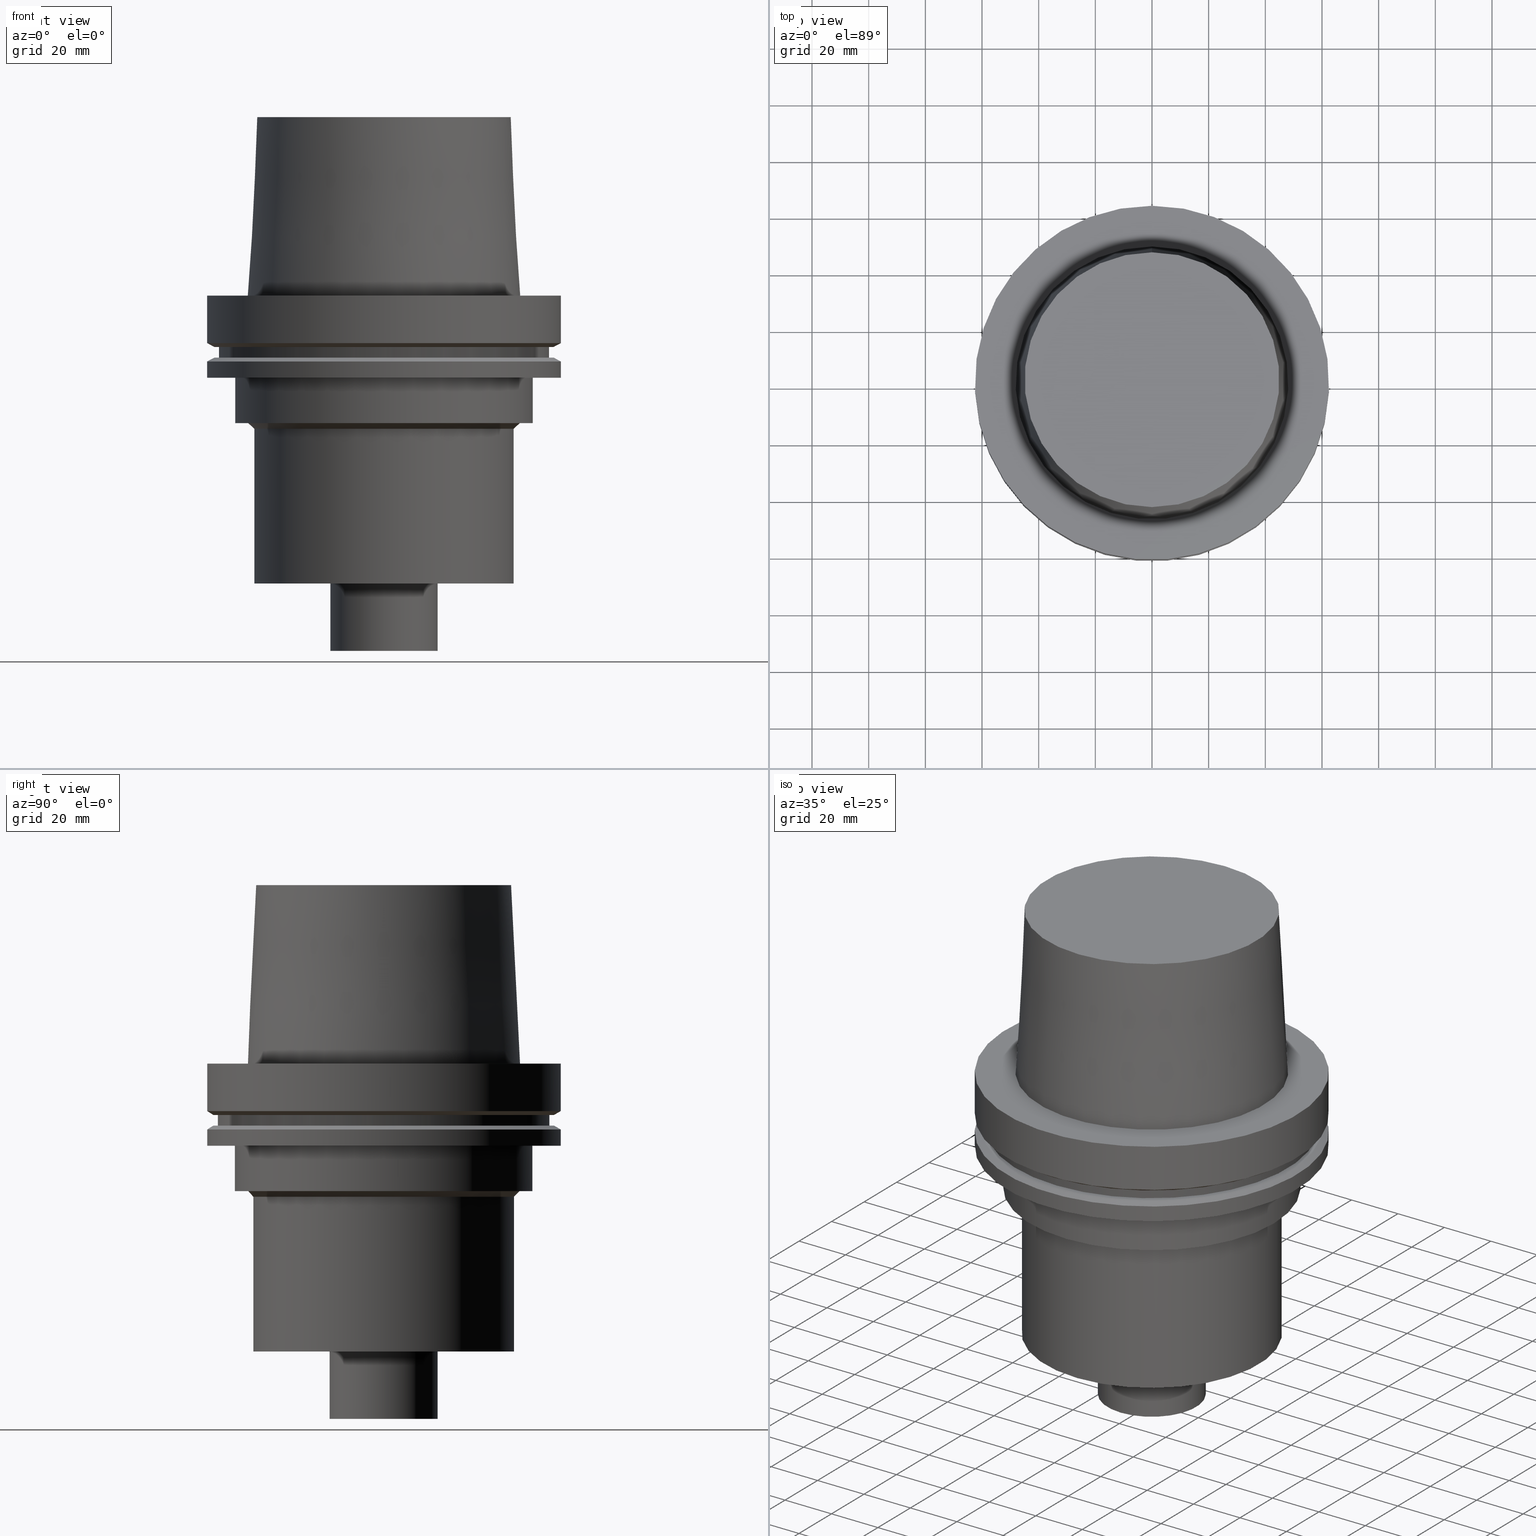
[diagram: canonical four-view strip — front | top / right | iso, engineering-drawing reading convention]
A machine part, canonical four-view strip (front | top / right | iso — engineering-drawing reading convention). The complete STEP part file that produces these views, byte-faithful:
ISO-10303-21;
HEADER;
FILE_DESCRIPTION((''),'1');
FILE_NAME('V:/02_3D_Field-HP\X2\FF71FF6FFF8CFF9F5916\X0\2013/02_Step_Field-HP\X2\FF71FF6FFF8CFF9F5916\X0\2013/HSK-A125-SMC1.500-4.stp','2017-07-11T04:59:17',(''),(''),'Spatial Interop R21 SP3','Kubotek KeyCreator 2011 V10.0.2 (22737)',' ');
FILE_SCHEMA(('automotive_design'));
ENDSEC;
DATA;
#1=MECHANICAL_DESIGN_GEOMETRIC_PRESENTATION_REPRESENTATION(' ',(#10,#11,#12,#13,#14,#15,#16,#17,#18,#19,#20,#21,#22,#23,#24,#25,#26,#27,#28,#29,#30,#31,#32,#33,#34,#35,#36,#37,#38,#39,#40,#41,#42,#43,#44,#45),#6);
#2=PRODUCT_DEFINITION_CONTEXT('',#46,'design');
#3=APPLICATION_PROTOCOL_DEFINITION('INTERNATIONAL STANDARD','automotive_design',1994,#46);
#4=PRODUCT_CATEGORY_RELATIONSHIP('NONE','NONE',#47,#48);
#5=SHAPE_DEFINITION_REPRESENTATION(#49,#50);
#6= (GEOMETRIC_REPRESENTATION_CONTEXT(3)GLOBAL_UNCERTAINTY_ASSIGNED_CONTEXT((#53))GLOBAL_UNIT_ASSIGNED_CONTEXT((#55,#56,#57))REPRESENTATION_CONTEXT('NONE','WORKSPACE'));
#10=STYLED_ITEM('',(#59,#60),#61);
#11=STYLED_ITEM('',(#62,#63),#64);
#12=STYLED_ITEM('',(#65),#66);
#13=STYLED_ITEM('',(#67,#68),#69);
#14=STYLED_ITEM('',(#70,#71),#72);
#15=STYLED_ITEM('',(#73),#74);
#16=STYLED_ITEM('',(#75,#76),#77);
#17=STYLED_ITEM('',(#78,#79),#80);
#18=STYLED_ITEM('',(#81,#82),#83);
#19=STYLED_ITEM('',(#84,#85),#86);
#20=STYLED_ITEM('',(#87),#88);
#21=STYLED_ITEM('',(#89,#90),#91);
#22=STYLED_ITEM('',(#92,#93),#94);
#23=STYLED_ITEM('',(#95,#96),#97);
#24=STYLED_ITEM('',(#98,#99),#100);
#25=STYLED_ITEM('',(#101,#102),#103);
#26=STYLED_ITEM('',(#104,#105),#106);
#27=STYLED_ITEM('',(#107),#108);
#28=STYLED_ITEM('',(#109),#110);
#29=STYLED_ITEM('',(#111,#112),#113);
#30=STYLED_ITEM('',(#114,#115),#116);
#31=STYLED_ITEM('',(#117),#118);
#32=STYLED_ITEM('',(#119),#120);
#33=STYLED_ITEM('',(#121),#122);
#34=STYLED_ITEM('',(#123),#124);
#35=STYLED_ITEM('',(#125),#126);
#36=STYLED_ITEM('',(#127,#128),#129);
#37=STYLED_ITEM('',(#130),#131);
#38=STYLED_ITEM('',(#132),#133);
#39=STYLED_ITEM('',(#134),#135);
#40=STYLED_ITEM('',(#136,#137),#138);
#41=STYLED_ITEM('',(#139),#140);
#42=STYLED_ITEM('',(#141),#142);
#43=STYLED_ITEM('',(#143),#144);
#44=STYLED_ITEM('',(#145,#146),#147);
#45=STYLED_ITEM('',(#148),#149);
#46=APPLICATION_CONTEXT(' ');
#47=PRODUCT_CATEGORY('part','NONE');
#48=PRODUCT_RELATED_PRODUCT_CATEGORY('detail',' ',(#150));
#49=PRODUCT_DEFINITION_SHAPE('NONE','NONE',#151);
#50=ADVANCED_BREP_SHAPE_REPRESENTATION('Unnamed[1]',(#77,#152),#6);
#53=UNCERTAINTY_MEASURE_WITH_UNIT(LENGTH_MEASURE(1.0E-006),#55,'','');
#55= (CONVERSION_BASED_UNIT('MILLIMETRE',#155)LENGTH_UNIT()NAMED_UNIT(#158));
#56= (NAMED_UNIT(#160)PLANE_ANGLE_UNIT()SI_UNIT($,.RADIAN.));
#57= (NAMED_UNIT(#160)SOLID_ANGLE_UNIT()SI_UNIT($,.STERADIAN.));
#59=PRESENTATION_STYLE_ASSIGNMENT((#166));
#60=PRESENTATION_STYLE_ASSIGNMENT((#167));
#61=ADVANCED_FACE('Unnamed[1]',(#168,#169),#170,.T.);
#62=PRESENTATION_STYLE_ASSIGNMENT((#171));
#63=PRESENTATION_STYLE_ASSIGNMENT((#172));
#64=ADVANCED_FACE('Unnamed[1]',(#173,#174),#175,.T.);
#65=PRESENTATION_STYLE_ASSIGNMENT((#176));
#66=EDGE_CURVE('Unnamed[1]',#177,#177,#178,.T.);
#67=PRESENTATION_STYLE_ASSIGNMENT((#179));
#68=PRESENTATION_STYLE_ASSIGNMENT((#180));
#69=ADVANCED_FACE('Unnamed[1]',(#181,#182),#183,.T.);
#70=PRESENTATION_STYLE_ASSIGNMENT((#184));
#71=PRESENTATION_STYLE_ASSIGNMENT((#185));
#72=ADVANCED_FACE('Unnamed[1]',(#186,#187),#188,.T.);
#73=PRESENTATION_STYLE_ASSIGNMENT((#189));
#74=EDGE_CURVE('Unnamed[1]',#190,#190,#191,.T.);
#75=PRESENTATION_STYLE_ASSIGNMENT((#192));
#76=PRESENTATION_STYLE_ASSIGNMENT((#193));
#77=MANIFOLD_SOLID_BREP('Unnamed[1]',#194);
#78=PRESENTATION_STYLE_ASSIGNMENT((#195));
#79=PRESENTATION_STYLE_ASSIGNMENT((#196));
#80=ADVANCED_FACE('Unnamed[1]',(#197,#198),#199,.T.);
#81=PRESENTATION_STYLE_ASSIGNMENT((#200));
#82=PRESENTATION_STYLE_ASSIGNMENT((#201));
#83=ADVANCED_FACE('Unnamed[1]',(#202),#203,.T.);
#84=PRESENTATION_STYLE_ASSIGNMENT((#204));
#85=PRESENTATION_STYLE_ASSIGNMENT((#205));
#86=ADVANCED_FACE('Unnamed[1]',(#206,#207),#208,.T.);
#87=PRESENTATION_STYLE_ASSIGNMENT((#209));
#88=EDGE_CURVE('Unnamed[1]',#210,#210,#211,.T.);
#89=PRESENTATION_STYLE_ASSIGNMENT((#212));
#90=PRESENTATION_STYLE_ASSIGNMENT((#213));
#91=ADVANCED_FACE('Unnamed[1]',(#214,#215),#216,.T.);
#92=PRESENTATION_STYLE_ASSIGNMENT((#217));
#93=PRESENTATION_STYLE_ASSIGNMENT((#218));
#94=ADVANCED_FACE('Unnamed[1]',(#219,#220),#221,.T.);
#95=PRESENTATION_STYLE_ASSIGNMENT((#222));
#96=PRESENTATION_STYLE_ASSIGNMENT((#223));
#97=ADVANCED_FACE('Unnamed[1]',(#224,#225),#226,.T.);
#98=PRESENTATION_STYLE_ASSIGNMENT((#227));
#99=PRESENTATION_STYLE_ASSIGNMENT((#228));
#100=ADVANCED_FACE('Unnamed[1]',(#229,#230),#231,.T.);
#101=PRESENTATION_STYLE_ASSIGNMENT((#232));
#102=PRESENTATION_STYLE_ASSIGNMENT((#233));
#103=ADVANCED_FACE('Unnamed[1]',(#234,#235),#236,.T.);
#104=PRESENTATION_STYLE_ASSIGNMENT((#237));
#105=PRESENTATION_STYLE_ASSIGNMENT((#238));
#106=ADVANCED_FACE('Unnamed[1]',(#239,#240),#241,.T.);
#107=PRESENTATION_STYLE_ASSIGNMENT((#242));
#108=EDGE_CURVE('Unnamed[1]',#243,#243,#244,.T.);
#109=PRESENTATION_STYLE_ASSIGNMENT((#245));
#110=EDGE_CURVE('Unnamed[1]',#246,#246,#247,.T.);
#111=PRESENTATION_STYLE_ASSIGNMENT((#248));
#112=PRESENTATION_STYLE_ASSIGNMENT((#249));
#113=ADVANCED_FACE('Unnamed[1]',(#250,#251),#252,.T.);
#114=PRESENTATION_STYLE_ASSIGNMENT((#253));
#115=PRESENTATION_STYLE_ASSIGNMENT((#254));
#116=ADVANCED_FACE('Unnamed[1]',(#255),#256,.T.);
#117=PRESENTATION_STYLE_ASSIGNMENT((#257));
#118=EDGE_CURVE('Unnamed[1]',#258,#258,#259,.T.);
#119=PRESENTATION_STYLE_ASSIGNMENT((#260));
#120=EDGE_CURVE('Unnamed[1]',#261,#261,#262,.T.);
#121=PRESENTATION_STYLE_ASSIGNMENT((#263));
#122=EDGE_CURVE('Unnamed[1]',#264,#264,#265,.T.);
#123=PRESENTATION_STYLE_ASSIGNMENT((#266));
#124=EDGE_CURVE('Unnamed[1]',#267,#267,#268,.T.);
#125=PRESENTATION_STYLE_ASSIGNMENT((#269));
#126=EDGE_CURVE('Unnamed[1]',#270,#270,#271,.T.);
#127=PRESENTATION_STYLE_ASSIGNMENT((#272));
#128=PRESENTATION_STYLE_ASSIGNMENT((#273));
#129=ADVANCED_FACE('Unnamed[1]',(#274,#275),#276,.T.);
#130=PRESENTATION_STYLE_ASSIGNMENT((#277));
#131=EDGE_CURVE('Unnamed[1]',#278,#278,#279,.T.);
#132=PRESENTATION_STYLE_ASSIGNMENT((#280));
#133=EDGE_CURVE('Unnamed[1]',#281,#281,#282,.T.);
#134=PRESENTATION_STYLE_ASSIGNMENT((#283));
#135=EDGE_CURVE('Unnamed[1]',#284,#284,#285,.T.);
#136=PRESENTATION_STYLE_ASSIGNMENT((#286));
#137=PRESENTATION_STYLE_ASSIGNMENT((#287));
#138=ADVANCED_FACE('Unnamed[1]',(#288,#289),#290,.T.);
#139=PRESENTATION_STYLE_ASSIGNMENT((#291));
#140=EDGE_CURVE('Unnamed[1]',#292,#292,#293,.T.);
#141=PRESENTATION_STYLE_ASSIGNMENT((#294));
#142=EDGE_CURVE('Unnamed[1]',#295,#295,#296,.T.);
#143=PRESENTATION_STYLE_ASSIGNMENT((#297));
#144=EDGE_CURVE('Unnamed[1]',#298,#298,#299,.T.);
#145=PRESENTATION_STYLE_ASSIGNMENT((#300));
#146=PRESENTATION_STYLE_ASSIGNMENT((#301));
#147=ADVANCED_FACE('Unnamed[1]',(#302,#303),#304,.T.);
#148=PRESENTATION_STYLE_ASSIGNMENT((#305));
#149=EDGE_CURVE('Unnamed[1]',#306,#306,#307,.T.);
#150=PRODUCT('Unnamed[1]','Unnamed[1]','PART-Unnamed[1]-DESC',(#308));
#151=PRODUCT_DEFINITION('NONE','NONE',#309,#2);
#152=AXIS2_PLACEMENT_3D('',#310,#311,#312);
#155=LENGTH_MEASURE_WITH_UNIT(LENGTH_MEASURE(1.0),#313);
#158=DIMENSIONAL_EXPONENTS(1.0,0.0,0.0,0.0,0.0,0.0,0.0);
#160=DIMENSIONAL_EXPONENTS(0.0,0.0,0.0,0.0,0.0,0.0,0.0);
#166=SURFACE_STYLE_USAGE(.BOTH.,#314);
#167=CURVE_STYLE('',#315,POSITIVE_LENGTH_MEASURE(1000.0),#316);
#168=FACE_BOUND('',#317,.T.);
#169=FACE_OUTER_BOUND('',#318,.T.);
#170=PLANE('',#319);
#171=SURFACE_STYLE_USAGE(.BOTH.,#320);
#172=CURVE_STYLE('',#321,POSITIVE_LENGTH_MEASURE(1000.0),#322);
#173=FACE_BOUND('',#323,.T.);
#174=FACE_BOUND('',#324,.T.);
#175=CYLINDRICAL_SURFACE('',#325,52.5000000000001);
#176=CURVE_STYLE('',#326,POSITIVE_LENGTH_MEASURE(1000.0),#327);
#177=VERTEX_POINT('',#328);
#178=CIRCLE('',#329,58.5);
#179=SURFACE_STYLE_USAGE(.BOTH.,#330);
#180=CURVE_STYLE('',#331,POSITIVE_LENGTH_MEASURE(1000.0),#332);
#181=FACE_BOUND('',#333,.T.);
#182=FACE_BOUND('',#334,.T.);
#183=CYLINDRICAL_SURFACE('',#335,62.5);
#184=SURFACE_STYLE_USAGE(.BOTH.,#336);
#185=CURVE_STYLE('',#337,POSITIVE_LENGTH_MEASURE(1000.0),#338);
#186=FACE_OUTER_BOUND('',#339,.T.);
#187=FACE_BOUND('',#340,.T.);
#188=PLANE('',#341);
#189=CURVE_STYLE('',#342,POSITIVE_LENGTH_MEASURE(1000.0),#343);
#190=VERTEX_POINT('',#344);
#191=CIRCLE('',#345,19.0499999999996);
#192=SURFACE_STYLE_USAGE(.BOTH.,#346);
#193=CURVE_STYLE('',#347,POSITIVE_LENGTH_MEASURE(1000.0),#348);
#194=CLOSED_SHELL('',(#83,#138,#72,#100,#97,#80,#113,#86,#103,#69,#106,#64,#91,#147,#129,#61,#94,#116));
#195=SURFACE_STYLE_USAGE(.BOTH.,#349);
#196=CURVE_STYLE('',#350,POSITIVE_LENGTH_MEASURE(1000.0),#351);
#197=FACE_BOUND('',#352,.T.);
#198=FACE_OUTER_BOUND('',#353,.T.);
#199=PLANE('',#354);
#200=SURFACE_STYLE_USAGE(.BOTH.,#355);
#201=CURVE_STYLE('',#356,POSITIVE_LENGTH_MEASURE(1000.0),#357);
#202=FACE_OUTER_BOUND('',#358,.T.);
#203=PLANE('',#359);
#204=SURFACE_STYLE_USAGE(.BOTH.,#360);
#205=CURVE_STYLE('',#361,POSITIVE_LENGTH_MEASURE(1000.0),#362);
#206=FACE_OUTER_BOUND('',#363,.T.);
#207=FACE_BOUND('',#364,.T.);
#208=PLANE('',#365);
#209=CURVE_STYLE('',#366,POSITIVE_LENGTH_MEASURE(1000.0),#367);
#210=VERTEX_POINT('',#368);
#211=CIRCLE('',#369,45.9999999999999);
#212=SURFACE_STYLE_USAGE(.BOTH.,#370);
#213=CURVE_STYLE('',#371,POSITIVE_LENGTH_MEASURE(1000.0),#372);
#214=FACE_BOUND('',#373,.T.);
#215=FACE_OUTER_BOUND('',#374,.T.);
#216=PLANE('',#375);
#217=SURFACE_STYLE_USAGE(.BOTH.,#376);
#218=CURVE_STYLE('',#377,POSITIVE_LENGTH_MEASURE(1000.0),#378);
#219=FACE_BOUND('',#379,.T.);
#220=FACE_BOUND('',#380,.T.);
#221=CYLINDRICAL_SURFACE('',#381,19.0499999999998);
#222=SURFACE_STYLE_USAGE(.BOTH.,#382);
#223=CURVE_STYLE('',#383,POSITIVE_LENGTH_MEASURE(1000.0),#384);
#224=FACE_BOUND('',#385,.T.);
#225=FACE_BOUND('',#386,.T.);
#226=CONICAL_SURFACE('',#387,61.3112976320956,1.04719755119668);
#227=SURFACE_STYLE_USAGE(.BOTH.,#388);
#228=CURVE_STYLE('',#389,POSITIVE_LENGTH_MEASURE(1000.0),#390);
#229=FACE_BOUND('',#391,.T.);
#230=FACE_BOUND('',#392,.T.);
#231=CYLINDRICAL_SURFACE('',#393,62.5000000000001);
#232=SURFACE_STYLE_USAGE(.BOTH.,#394);
#233=CURVE_STYLE('',#395,POSITIVE_LENGTH_MEASURE(1000.0),#396);
#234=FACE_BOUND('',#397,.T.);
#235=FACE_BOUND('',#398,.T.);
#236=CONICAL_SURFACE('',#399,61.311297632097,1.04719755119646);
#237=SURFACE_STYLE_USAGE(.BOTH.,#400);
#238=CURVE_STYLE('',#401,POSITIVE_LENGTH_MEASURE(1000.0),#402);
#239=FACE_BOUND('',#403,.T.);
#240=FACE_OUTER_BOUND('',#404,.T.);
#241=PLANE('',#405);
#242=CURVE_STYLE('',#406,POSITIVE_LENGTH_MEASURE(1000.0),#407);
#243=VERTEX_POINT('',#408);
#244=CIRCLE('',#409,52.5000000000003);
#245=CURVE_STYLE('',#410,POSITIVE_LENGTH_MEASURE(1000.0),#411);
#246=VERTEX_POINT('',#412);
#247=CIRCLE('',#413,60.122595264194);
#248=SURFACE_STYLE_USAGE(.BOTH.,#414);
#249=CURVE_STYLE('',#415,POSITIVE_LENGTH_MEASURE(1000.0),#416);
#250=FACE_BOUND('',#417,.T.);
#251=FACE_BOUND('',#418,.T.);
#252=CYLINDRICAL_SURFACE('',#419,58.4999999999999);
#253=SURFACE_STYLE_USAGE(.BOTH.,#420);
#254=CURVE_STYLE('',#421,POSITIVE_LENGTH_MEASURE(1000.0),#422);
#255=FACE_OUTER_BOUND('',#423,.T.);
#256=PLANE('',#424);
#257=CURVE_STYLE('',#425,POSITIVE_LENGTH_MEASURE(1000.0),#426);
#258=VERTEX_POINT('',#427);
#259=CIRCLE('',#428,52.4999999999998);
#260=CURVE_STYLE('',#429,POSITIVE_LENGTH_MEASURE(1000.0),#430);
#261=VERTEX_POINT('',#431);
#262=CIRCLE('',#432,62.5000000000002);
#263=CURVE_STYLE('',#433,POSITIVE_LENGTH_MEASURE(1000.0),#434);
#264=VERTEX_POINT('',#435);
#265=CIRCLE('',#436,45.9999999999999);
#266=CURVE_STYLE('',#437,POSITIVE_LENGTH_MEASURE(1000.0),#438);
#267=VERTEX_POINT('',#439);
#268=CIRCLE('',#440,60.1225952641912);
#269=CURVE_STYLE('',#441,POSITIVE_LENGTH_MEASURE(1000.0),#442);
#270=VERTEX_POINT('',#443);
#271=CIRCLE('',#444,62.5);
#272=SURFACE_STYLE_USAGE(.BOTH.,#445);
#273=CURVE_STYLE('',#446,POSITIVE_LENGTH_MEASURE(1000.0),#447);
#274=FACE_BOUND('',#448,.T.);
#275=FACE_BOUND('',#449,.T.);
#276=CYLINDRICAL_SURFACE('',#450,45.9999999999999);
#277=CURVE_STYLE('',#451,POSITIVE_LENGTH_MEASURE(1000.0),#452);
#278=VERTEX_POINT('',#453);
#279=CIRCLE('',#454,19.05);
#280=CURVE_STYLE('',#455,POSITIVE_LENGTH_MEASURE(1000.0),#456);
#281=VERTEX_POINT('',#457);
#282=CIRCLE('',#458,48.1342525050097);
#283=CURVE_STYLE('',#459,POSITIVE_LENGTH_MEASURE(1000.0),#460);
#284=VERTEX_POINT('',#461);
#285=CIRCLE('',#462,62.5);
#286=SURFACE_STYLE_USAGE(.BOTH.,#463);
#287=CURVE_STYLE('',#464,POSITIVE_LENGTH_MEASURE(1000.0),#465);
#288=FACE_BOUND('',#466,.T.);
#289=FACE_BOUND('',#467,.T.);
#290=CONICAL_SURFACE('',#468,46.5560961923844,0.0500583457465964);
#291=CURVE_STYLE('',#469,POSITIVE_LENGTH_MEASURE(1000.0),#470);
#292=VERTEX_POINT('',#471);
#293=CIRCLE('',#472,62.5);
#294=CURVE_STYLE('',#473,POSITIVE_LENGTH_MEASURE(1000.0),#474);
#295=VERTEX_POINT('',#475);
#296=CIRCLE('',#476,47.9999999999999);
#297=CURVE_STYLE('',#477,POSITIVE_LENGTH_MEASURE(1000.0),#478);
#298=VERTEX_POINT('',#479);
#299=CIRCLE('',#480,58.4999999999998);
#300=SURFACE_STYLE_USAGE(.BOTH.,#481);
#301=CURVE_STYLE('',#482,POSITIVE_LENGTH_MEASURE(1000.0),#483);
#302=FACE_BOUND('',#484,.T.);
#303=FACE_BOUND('',#485,.T.);
#304=CONICAL_SURFACE('',#486,46.9999999999999,0.785398163397452);
#305=CURVE_STYLE('',#487,POSITIVE_LENGTH_MEASURE(1000.0),#488);
#306=VERTEX_POINT('',#489);
#307=CIRCLE('',#490,44.9779398797591);
#308=PRODUCT_CONTEXT('',#46,'mechanical');
#309=PRODUCT_DEFINITION_FORMATION_WITH_SPECIFIED_SOURCE(' ','NONE',#150,.NOT_KNOWN.);
#310=CARTESIAN_POINT('',(0.0,0.0,0.0));
#311=DIRECTION('',(0.0,0.0,1.0));
#312=DIRECTION('',(1.0,0.0,0.0));
#313= (NAMED_UNIT(#158)LENGTH_UNIT()SI_UNIT(.MILLI.,.METRE.));
#314=SURFACE_SIDE_STYLE('',(#492));
#315=DRAUGHTING_PRE_DEFINED_CURVE_FONT('continuous');
#316=COLOUR_RGB('',0.0,1.0,0.0);
#317=EDGE_LOOP('',(#493));
#318=EDGE_LOOP('',(#494));
#319=AXIS2_PLACEMENT_3D('',#495,#496,#497);
#320=SURFACE_SIDE_STYLE('',(#498));
#321=DRAUGHTING_PRE_DEFINED_CURVE_FONT('continuous');
#322=COLOUR_RGB('',0.0,1.0,0.0);
#323=EDGE_LOOP('',(#499));
#324=EDGE_LOOP('',(#500));
#325=AXIS2_PLACEMENT_3D('',#501,#502,#503);
#326=DRAUGHTING_PRE_DEFINED_CURVE_FONT('continuous');
#327=COLOUR_RGB('',0.0,1.0,0.0);
#328=CARTESIAN_POINT('',(1.10983616172739E-015,58.5,-18.1250000000017));
#329=AXIS2_PLACEMENT_3D('',#504,#505,#506);
#330=SURFACE_SIDE_STYLE('',(#507));
#331=DRAUGHTING_PRE_DEFINED_CURVE_FONT('continuous');
#332=COLOUR_RGB('',0.0,1.0,0.0);
#333=EDGE_LOOP('',(#508));
#334=EDGE_LOOP('',(#509));
#335=AXIS2_PLACEMENT_3D('',#510,#511,#512);
#336=SURFACE_SIDE_STYLE('',(#513));
#337=DRAUGHTING_PRE_DEFINED_CURVE_FONT('continuous');
#338=COLOUR_RGB('',0.0,1.0,0.0);
#339=EDGE_LOOP('',(#514));
#340=EDGE_LOOP('',(#515));
#341=AXIS2_PLACEMENT_3D('',#516,#517,#518);
#342=DRAUGHTING_PRE_DEFINED_CURVE_FONT('continuous');
#343=COLOUR_RGB('',0.0,1.0,0.0);
#344=CARTESIAN_POINT('',(7.67853543065387E-015,19.0499999999996,-125.399999999999));
#345=AXIS2_PLACEMENT_3D('',#519,#520,#521);
#346=SURFACE_SIDE_STYLE('',(#522));
#347=DRAUGHTING_PRE_DEFINED_CURVE_FONT('continuous');
#348=COLOUR_RGB('',0.0,1.0,0.0);
#349=SURFACE_SIDE_STYLE('',(#523));
#350=DRAUGHTING_PRE_DEFINED_CURVE_FONT('continuous');
#351=COLOUR_RGB('',0.0,1.0,0.0);
#352=EDGE_LOOP('',(#524));
#353=EDGE_LOOP('',(#525));
#354=AXIS2_PLACEMENT_3D('',#526,#527,#528);
#355=SURFACE_SIDE_STYLE('',(#529));
#356=DRAUGHTING_PRE_DEFINED_CURVE_FONT('continuous');
#357=COLOUR_RGB('',0.0,1.0,0.0);
#358=EDGE_LOOP('',(#530));
#359=AXIS2_PLACEMENT_3D('',#531,#532,#533);
#360=SURFACE_SIDE_STYLE('',(#534));
#361=DRAUGHTING_PRE_DEFINED_CURVE_FONT('continuous');
#362=COLOUR_RGB('',0.0,1.0,0.0);
#363=EDGE_LOOP('',(#535));
#364=EDGE_LOOP('',(#536));
#365=AXIS2_PLACEMENT_3D('',#537,#538,#539);
#366=DRAUGHTING_PRE_DEFINED_CURVE_FONT('continuous');
#367=COLOUR_RGB('',0.0,1.0,0.0);
#368=CARTESIAN_POINT('',(6.22120573966853E-015,46.0,-101.6));
#369=AXIS2_PLACEMENT_3D('',#540,#541,#542);
#370=SURFACE_SIDE_STYLE('',(#543));
#371=DRAUGHTING_PRE_DEFINED_CURVE_FONT('continuous');
#372=COLOUR_RGB('',0.0,1.0,0.0);
#373=EDGE_LOOP('',(#544));
#374=EDGE_LOOP('',(#545));
#375=AXIS2_PLACEMENT_3D('',#546,#547,#548);
#376=SURFACE_SIDE_STYLE('',(#549));
#377=DRAUGHTING_PRE_DEFINED_CURVE_FONT('continuous');
#378=COLOUR_RGB('',0.0,1.0,0.0);
#379=EDGE_LOOP('',(#550));
#380=EDGE_LOOP('',(#551));
#381=AXIS2_PLACEMENT_3D('',#552,#553,#554);
#382=SURFACE_SIDE_STYLE('',(#555));
#383=DRAUGHTING_PRE_DEFINED_CURVE_FONT('continuous');
#384=COLOUR_RGB('',0.0,1.0,0.0);
#385=EDGE_LOOP('',(#556));
#386=EDGE_LOOP('',(#557));
#387=AXIS2_PLACEMENT_3D('',#558,#559,#560);
#388=SURFACE_SIDE_STYLE('',(#561));
#389=DRAUGHTING_PRE_DEFINED_CURVE_FONT('continuous');
#390=COLOUR_RGB('',0.0,1.0,0.0);
#391=EDGE_LOOP('',(#562));
#392=EDGE_LOOP('',(#563));
#393=AXIS2_PLACEMENT_3D('',#564,#565,#566);
#394=SURFACE_SIDE_STYLE('',(#567));
#395=DRAUGHTING_PRE_DEFINED_CURVE_FONT('continuous');
#396=COLOUR_RGB('',0.0,1.0,0.0);
#397=EDGE_LOOP('',(#568));
#398=EDGE_LOOP('',(#569));
#399=AXIS2_PLACEMENT_3D('',#570,#571,#572);
#400=SURFACE_SIDE_STYLE('',(#573));
#401=DRAUGHTING_PRE_DEFINED_CURVE_FONT('continuous');
#402=COLOUR_RGB('',0.0,1.0,0.0);
#403=EDGE_LOOP('',(#574));
#404=EDGE_LOOP('',(#575));
#405=AXIS2_PLACEMENT_3D('',#576,#577,#578);
#406=DRAUGHTING_PRE_DEFINED_CURVE_FONT('continuous');
#407=COLOUR_RGB('',0.0,1.0,0.0);
#408=CARTESIAN_POINT('',(1.77573785876367E-015,52.5000000000003,-29.0000000000001));
#409=AXIS2_PLACEMENT_3D('',#579,#580,#581);
#410=DRAUGHTING_PRE_DEFINED_CURVE_FONT('continuous');
#411=COLOUR_RGB('',0.0,1.0,0.0);
#412=CARTESIAN_POINT('',(1.33945743656747E-015,60.122595264194,-21.8750000000009));
#413=AXIS2_PLACEMENT_3D('',#582,#583,#584);
#414=SURFACE_SIDE_STYLE('',(#585));
#415=DRAUGHTING_PRE_DEFINED_CURVE_FONT('continuous');
#416=COLOUR_RGB('',0.0,1.0,0.0);
#417=EDGE_LOOP('',(#586));
#418=EDGE_LOOP('',(#587));
#419=AXIS2_PLACEMENT_3D('',#588,#589,#590);
#420=SURFACE_SIDE_STYLE('',(#591));
#421=DRAUGHTING_PRE_DEFINED_CURVE_FONT('continuous');
#422=COLOUR_RGB('',0.0,1.0,0.0);
#423=EDGE_LOOP('',(#592));
#424=AXIS2_PLACEMENT_3D('',#593,#594,#595);
#425=DRAUGHTING_PRE_DEFINED_CURVE_FONT('continuous');
#426=COLOUR_RGB('',0.0,1.0,0.0);
#427=CARTESIAN_POINT('',(2.75545529808155E-015,52.4999999999998,-45.0000000000001));
#428=AXIS2_PLACEMENT_3D('',#596,#597,#598);
#429=DRAUGHTING_PRE_DEFINED_CURVE_FONT('continuous');
#430=COLOUR_RGB('',0.0,1.0,0.0);
#431=CARTESIAN_POINT('',(-5.58935713239973E-030,62.5000000000002,8.63540424946709E-014));
#432=AXIS2_PLACEMENT_3D('',#599,#600,#601);
#433=DRAUGHTING_PRE_DEFINED_CURVE_FONT('continuous');
#434=COLOUR_RGB('',0.0,1.0,0.0);
#435=CARTESIAN_POINT('',(2.87791997799629E-015,45.9999999999999,-47.0000000000001));
#436=AXIS2_PLACEMENT_3D('',#602,#603,#604);
#437=DRAUGHTING_PRE_DEFINED_CURVE_FONT('continuous');
#438=COLOUR_RGB('',0.0,1.0,0.0);
#439=CARTESIAN_POINT('',(1.10983616172729E-015,60.1225952641912,-18.1250000000001));
#440=AXIS2_PLACEMENT_3D('',#605,#606,#607);
#441=DRAUGHTING_PRE_DEFINED_CURVE_FONT('continuous');
#442=COLOUR_RGB('',0.0,1.0,0.0);
#443=CARTESIAN_POINT('',(1.42350465640827E-015,62.5,-23.2475952641916));
#444=AXIS2_PLACEMENT_3D('',#608,#609,#610);
#445=SURFACE_SIDE_STYLE('',(#611));
#446=DRAUGHTING_PRE_DEFINED_CURVE_FONT('continuous');
#447=COLOUR_RGB('',0.0,1.0,0.0);
#448=EDGE_LOOP('',(#612));
#449=EDGE_LOOP('',(#613));
#450=AXIS2_PLACEMENT_3D('',#614,#615,#616);
#451=DRAUGHTING_PRE_DEFINED_CURVE_FONT('continuous');
#452=COLOUR_RGB('',0.0,1.0,0.0);
#453=CARTESIAN_POINT('',(6.22120573966853E-015,19.05,-101.6));
#454=AXIS2_PLACEMENT_3D('',#617,#618,#619);
#455=DRAUGHTING_PRE_DEFINED_CURVE_FONT('continuous');
#456=COLOUR_RGB('',0.0,1.0,0.0);
#457=CARTESIAN_POINT('',(3.88342032297484E-029,48.1342525050097,-6.38005254174039E-013));
#458=AXIS2_PLACEMENT_3D('',#620,#621,#622);
#459=DRAUGHTING_PRE_DEFINED_CURVE_FONT('continuous');
#460=COLOUR_RGB('',0.0,1.0,0.0);
#461=CARTESIAN_POINT('',(1.77573785876367E-015,62.5,-29.0000000000001));
#462=AXIS2_PLACEMENT_3D('',#623,#624,#625);
#463=SURFACE_SIDE_STYLE('',(#626));
#464=DRAUGHTING_PRE_DEFINED_CURVE_FONT('continuous');
#465=COLOUR_RGB('',0.0,1.0,0.0);
#466=EDGE_LOOP('',(#627));
#467=EDGE_LOOP('',(#628));
#468=AXIS2_PLACEMENT_3D('',#629,#630,#631);
#469=DRAUGHTING_PRE_DEFINED_CURVE_FONT('continuous');
#470=COLOUR_RGB('',0.0,1.0,0.0);
#471=CARTESIAN_POINT('',(1.02578894188644E-015,62.5,-16.7524047358084));
#472=AXIS2_PLACEMENT_3D('',#632,#633,#634);
#473=DRAUGHTING_PRE_DEFINED_CURVE_FONT('continuous');
#474=COLOUR_RGB('',0.0,1.0,0.0);
#475=CARTESIAN_POINT('',(2.75545529808155E-015,47.9999999999999,-45.0000000000001));
#476=AXIS2_PLACEMENT_3D('',#635,#636,#637);
#477=DRAUGHTING_PRE_DEFINED_CURVE_FONT('continuous');
#478=COLOUR_RGB('',0.0,1.0,0.0);
#479=CARTESIAN_POINT('',(1.33945743656732E-015,58.4999999999998,-21.8749999999984));
#480=AXIS2_PLACEMENT_3D('',#638,#639,#640);
#481=SURFACE_SIDE_STYLE('',(#641));
#482=DRAUGHTING_PRE_DEFINED_CURVE_FONT('continuous');
#483=COLOUR_RGB('',0.0,1.0,0.0);
#484=EDGE_LOOP('',(#642));
#485=EDGE_LOOP('',(#643));
#486=AXIS2_PLACEMENT_3D('',#644,#645,#646);
#487=DRAUGHTING_PRE_DEFINED_CURVE_FONT('continuous');
#488=COLOUR_RGB('',0.0,1.0,0.0);
#489=CARTESIAN_POINT('',(-3.85763741731416E-015,44.9779398797591,62.9999999999999));
#490=AXIS2_PLACEMENT_3D('',#647,#648,#649);
#492=SURFACE_STYLE_FILL_AREA(#650);
#493=ORIENTED_EDGE('',*,*,#131,.F.);
#494=ORIENTED_EDGE('',*,*,#88,.T.);
#495=CARTESIAN_POINT('',(6.22120573966853E-015,32.525,-101.6));
#496=DIRECTION('',(6.12323399573677E-017,1.22464679914735E-016,-1.0));
#497=DIRECTION('',(-1.23259516440783E-032,1.0,1.22464679914735E-016));
#498=SURFACE_STYLE_FILL_AREA(#651);
#499=ORIENTED_EDGE('',*,*,#118,.F.);
#500=ORIENTED_EDGE('',*,*,#108,.T.);
#501=CARTESIAN_POINT('',(2.26559657842261E-015,4.53119315684522E-015,-37.0000000000001));
#502=DIRECTION('',(6.12323399573677E-017,1.22464679914708E-016,-1.0));
#503=DIRECTION('',(-1.23259516440783E-032,1.0,1.22464679914708E-016));
#504=CARTESIAN_POINT('',(1.10983616172739E-015,2.21967232345478E-015,-18.1250000000017));
#505=DIRECTION('',(6.12323399573677E-017,1.22464679914762E-016,-1.0));
#506=DIRECTION('',(-1.23259516440783E-032,1.0,1.22464679914762E-016));
#507=SURFACE_STYLE_FILL_AREA(#652);
#508=ORIENTED_EDGE('',*,*,#135,.F.);
#509=ORIENTED_EDGE('',*,*,#126,.T.);
#510=CARTESIAN_POINT('',(1.59962125758597E-015,3.19924251517194E-015,-26.1237976320958));
#511=DIRECTION('',(6.12323399573677E-017,1.22464679914723E-016,-1.0));
#512=DIRECTION('',(-1.23259516440783E-032,1.0,1.22464679914723E-016));
#513=SURFACE_STYLE_FILL_AREA(#653);
#514=ORIENTED_EDGE('',*,*,#120,.F.);
#515=ORIENTED_EDGE('',*,*,#133,.T.);
#516=CARTESIAN_POINT('',(1.66224230486744E-029,55.317126252505,-2.75825605839684E-013));
#517=DIRECTION('',(-6.12323399573677E-017,-5.04226666187264E-014,1.0));
#518=DIRECTION('',(3.09232501668564E-030,-1.0,-5.04226666187264E-014));
#519=CARTESIAN_POINT('',(7.67853543065387E-015,1.53570708613077E-014,-125.399999999999));
#520=DIRECTION('',(6.12323399573677E-017,1.224646799147E-016,-1.0));
#521=DIRECTION('',(-1.23259516440805E-032,1.0,1.224646799147E-016));
#522=SURFACE_STYLE_FILL_AREA(#654);
#523=SURFACE_STYLE_FILL_AREA(#655);
#524=ORIENTED_EDGE('',*,*,#66,.F.);
#525=ORIENTED_EDGE('',*,*,#124,.T.);
#526=CARTESIAN_POINT('',(1.10983616172734E-015,59.3112976320956,-18.1250000000009));
#527=DIRECTION('',(6.12323399573677E-017,9.85408931824386E-013,-1.0));
#528=DIRECTION('',(-6.03437218632281E-029,1.0,9.85408931824386E-013));
#529=SURFACE_STYLE_FILL_AREA(#656);
#530=ORIENTED_EDGE('',*,*,#149,.F.);
#531=CARTESIAN_POINT('',(-3.85763741731416E-015,22.4889699398795,62.9999999999999));
#532=DIRECTION('',(-6.12323399573677E-017,-1.22464679914735E-016,1.0));
#533=DIRECTION('',(1.23259516440783E-032,-1.0,-1.22464679914735E-016));
#534=SURFACE_STYLE_FILL_AREA(#657);
#535=ORIENTED_EDGE('',*,*,#110,.F.);
#536=ORIENTED_EDGE('',*,*,#144,.T.);
#537=CARTESIAN_POINT('',(1.33945743656739E-015,59.3112976320969,-21.8749999999996));
#538=DIRECTION('',(-6.12323399573677E-017,1.54130347502767E-012,1.0));
#539=DIRECTION('',(-9.43727912076354E-029,-1.0,1.54130347502767E-012));
#540=CARTESIAN_POINT('',(6.22120573966853E-015,1.24424114793371E-014,-101.6));
#541=DIRECTION('',(6.12323399573676E-017,1.22464679914717E-016,-1.0));
#542=DIRECTION('',(-1.23259516440783E-032,1.0,1.22464679914717E-016));
#543=SURFACE_STYLE_FILL_AREA(#658);
#544=ORIENTED_EDGE('',*,*,#142,.F.);
#545=ORIENTED_EDGE('',*,*,#118,.T.);
#546=CARTESIAN_POINT('',(2.75545529808155E-015,50.2499999999999,-45.0000000000001));
#547=DIRECTION('',(6.12323399573677E-017,1.22464679914735E-016,-1.0));
#548=DIRECTION('',(-1.23259516440783E-032,1.0,1.22464679914735E-016));
#549=SURFACE_STYLE_FILL_AREA(#659);
#550=ORIENTED_EDGE('',*,*,#74,.F.);
#551=ORIENTED_EDGE('',*,*,#131,.T.);
#552=CARTESIAN_POINT('',(6.9498705851612E-015,1.38997411703224E-014,-113.5));
#553=DIRECTION('',(6.12323399573677E-017,1.22464679914699E-016,-1.0));
#554=DIRECTION('',(-1.23259516440803E-032,1.0,1.22464679914699E-016));
#555=SURFACE_STYLE_FILL_AREA(#660);
#556=ORIENTED_EDGE('',*,*,#124,.F.);
#557=ORIENTED_EDGE('',*,*,#140,.T.);
#558=CARTESIAN_POINT('',(1.06781255180686E-015,2.13562510361373E-015,-17.4387023679042));
#559=DIRECTION('',(-6.12323399573676E-017,-1.22464679914786E-016,1.0));
#560=DIRECTION('',(-1.23259516440761E-032,1.0,1.22464679914786E-016));
#561=SURFACE_STYLE_FILL_AREA(#661);
#562=ORIENTED_EDGE('',*,*,#140,.F.);
#563=ORIENTED_EDGE('',*,*,#120,.T.);
#564=CARTESIAN_POINT('',(5.12894470943215E-016,1.02578894188643E-015,-8.37620236790416));
#565=DIRECTION('',(6.12323399573677E-017,1.22464679914723E-016,-1.0));
#566=DIRECTION('',(-1.23259516440783E-032,1.0,1.22464679914723E-016));
#567=SURFACE_STYLE_FILL_AREA(#662);
#568=ORIENTED_EDGE('',*,*,#126,.F.);
#569=ORIENTED_EDGE('',*,*,#110,.T.);
#570=CARTESIAN_POINT('',(1.38148104648787E-015,2.76296209297574E-015,-22.5612976320962));
#571=DIRECTION('',(6.12323399573677E-017,1.22464679914783E-016,-1.0));
#572=DIRECTION('',(-1.23259516440758E-032,1.0,1.22464679914783E-016));
#573=SURFACE_STYLE_FILL_AREA(#663);
#574=ORIENTED_EDGE('',*,*,#108,.F.);
#575=ORIENTED_EDGE('',*,*,#135,.T.);
#576=CARTESIAN_POINT('',(1.77573785876367E-015,57.5000000000002,-29.0000000000001));
#577=DIRECTION('',(6.12323399573677E-017,1.22464679914735E-016,-1.0));
#578=DIRECTION('',(-1.23259516440783E-032,1.0,1.22464679914735E-016));
#579=CARTESIAN_POINT('',(1.77573785876367E-015,3.55147571752733E-015,-29.0000000000001));
#580=DIRECTION('',(6.12323399573677E-017,1.22464679914708E-016,-1.0));
#581=DIRECTION('',(-1.23259516440782E-032,1.0,1.22464679914708E-016));
#582=CARTESIAN_POINT('',(1.33945743656747E-015,2.67891487313494E-015,-21.8750000000009));
#583=DIRECTION('',(6.12323399573677E-017,1.22464679914738E-016,-1.0));
#584=DIRECTION('',(-1.23259516440791E-032,1.0,1.22464679914738E-016));
#585=SURFACE_STYLE_FILL_AREA(#664);
#586=ORIENTED_EDGE('',*,*,#144,.F.);
#587=ORIENTED_EDGE('',*,*,#66,.T.);
#588=CARTESIAN_POINT('',(1.22464679914736E-015,2.44929359829471E-015,-20.0));
#589=DIRECTION('',(6.12323399573677E-017,1.22464679914762E-016,-1.0));
#590=DIRECTION('',(-1.23259516440783E-032,1.0,1.22464679914762E-016));
#591=SURFACE_STYLE_FILL_AREA(#665);
#592=ORIENTED_EDGE('',*,*,#74,.T.);
#593=CARTESIAN_POINT('',(7.67853543065388E-015,9.5249999999998,-125.4));
#594=DIRECTION('',(6.12323399573677E-017,1.13121140619638E-014,-1.0));
#595=DIRECTION('',(-6.97494366609456E-031,1.0,1.13121140619638E-014));
#596=CARTESIAN_POINT('',(2.75545529808155E-015,5.5109105961631E-015,-45.0000000000001));
#597=DIRECTION('',(6.12323399573677E-017,1.22464679914709E-016,-1.0));
#598=DIRECTION('',(-1.23259516440784E-032,1.0,1.22464679914709E-016));
#599=CARTESIAN_POINT('',(-5.22098332203606E-030,-1.04419666440721E-029,8.5265128291212E-014));
#600=DIRECTION('',(6.12323399573677E-017,1.22464679914723E-016,-1.0));
#601=DIRECTION('',(-1.23259516440783E-032,1.0,1.22464679914723E-016));
#602=CARTESIAN_POINT('',(2.87791997799629E-015,5.75583995599257E-015,-47.0000000000001));
#603=DIRECTION('',(6.12323399573676E-017,1.22464679914717E-016,-1.0));
#604=DIRECTION('',(-1.23259516440783E-032,1.0,1.22464679914717E-016));
#605=CARTESIAN_POINT('',(1.10983616172729E-015,2.21967232345459E-015,-18.1250000000001));
#606=DIRECTION('',(6.12323399573677E-017,1.22464679914743E-016,-1.0));
#607=DIRECTION('',(-1.23259516440797E-032,1.0,1.22464679914743E-016));
#608=CARTESIAN_POINT('',(1.42350465640827E-015,2.84700931281654E-015,-23.2475952641916));
#609=DIRECTION('',(6.12323399573677E-017,1.22464679914723E-016,-1.0));
#610=DIRECTION('',(-1.23259516440783E-032,1.0,1.22464679914723E-016));
#611=SURFACE_STYLE_FILL_AREA(#666);
#612=ORIENTED_EDGE('',*,*,#88,.F.);
#613=ORIENTED_EDGE('',*,*,#122,.T.);
#614=CARTESIAN_POINT('',(4.54956285883241E-015,9.09912571766482E-015,-74.2999999999999));
#615=DIRECTION('',(6.12323399573677E-017,1.22464679914717E-016,-1.0));
#616=DIRECTION('',(-1.23259516440783E-032,1.0,1.22464679914717E-016));
#617=CARTESIAN_POINT('',(6.22120573966853E-015,1.24424114793371E-014,-101.6));
#618=DIRECTION('',(6.12323399573676E-017,1.22464679914697E-016,-1.0));
#619=DIRECTION('',(-1.23259516440802E-032,1.0,1.22464679914697E-016));
#620=CARTESIAN_POINT('',(3.91573749152705E-029,7.83147498305409E-029,-6.3948846218409E-013));
#621=DIRECTION('',(6.12323399573677E-017,1.22464679914742E-016,-1.0));
#622=DIRECTION('',(-1.23259516440755E-032,1.0,1.22464679914742E-016));
#623=CARTESIAN_POINT('',(1.77573785876367E-015,3.55147571752733E-015,-29.0000000000001));
#624=DIRECTION('',(6.12323399573677E-017,1.22464679914723E-016,-1.0));
#625=DIRECTION('',(-1.23259516440783E-032,1.0,1.22464679914723E-016));
#626=SURFACE_STYLE_FILL_AREA(#667);
#627=ORIENTED_EDGE('',*,*,#133,.F.);
#628=ORIENTED_EDGE('',*,*,#149,.T.);
#629=CARTESIAN_POINT('',(-1.92881870865706E-015,-3.85763741731411E-015,31.4999999999996));
#630=DIRECTION('',(6.12323399573676E-017,1.22464679914766E-016,-1.0));
#631=DIRECTION('',(-1.23259516440801E-032,1.0,1.22464679914766E-016));
#632=CARTESIAN_POINT('',(1.02578894188644E-015,2.05157788377287E-015,-16.7524047358084));
#633=DIRECTION('',(6.12323399573676E-017,1.22464679914723E-016,-1.0));
#634=DIRECTION('',(-1.23259516440783E-032,1.0,1.22464679914723E-016));
#635=CARTESIAN_POINT('',(2.75545529808155E-015,5.5109105961631E-015,-45.0000000000001));
#636=DIRECTION('',(6.12323399573676E-017,1.22464679914693E-016,-1.0));
#637=DIRECTION('',(-1.23259516440783E-032,1.0,1.22464679914693E-016));
#638=CARTESIAN_POINT('',(1.33945743656732E-015,2.67891487313464E-015,-21.8749999999984));
#639=DIRECTION('',(6.12323399573677E-017,1.22464679914763E-016,-1.0));
#640=DIRECTION('',(-1.23259516440784E-032,1.0,1.22464679914763E-016));
#641=SURFACE_STYLE_FILL_AREA(#668);
#642=ORIENTED_EDGE('',*,*,#122,.F.);
#643=ORIENTED_EDGE('',*,*,#142,.T.);
#644=CARTESIAN_POINT('',(2.81668763803892E-015,5.63337527607784E-015,-46.0000000000001));
#645=DIRECTION('',(-6.12323399573676E-017,-1.22464679914705E-016,1.0));
#646=DIRECTION('',(-1.23259516440783E-032,1.0,1.22464679914705E-016));
#647=CARTESIAN_POINT('',(-3.85763741731416E-015,-7.71527483462831E-015,62.9999999999999));
#648=DIRECTION('',(6.12323399573677E-017,1.22464679914719E-016,-1.0));
#649=DIRECTION('',(-1.23259516440771E-032,1.0,1.22464679914719E-016));
#650=FILL_AREA_STYLE('',(#669));
#651=FILL_AREA_STYLE('',(#670));
#652=FILL_AREA_STYLE('',(#671));
#653=FILL_AREA_STYLE('',(#672));
#654=FILL_AREA_STYLE('',(#673));
#655=FILL_AREA_STYLE('',(#674));
#656=FILL_AREA_STYLE('',(#675));
#657=FILL_AREA_STYLE('',(#676));
#658=FILL_AREA_STYLE('',(#677));
#659=FILL_AREA_STYLE('',(#678));
#660=FILL_AREA_STYLE('',(#679));
#661=FILL_AREA_STYLE('',(#680));
#662=FILL_AREA_STYLE('',(#681));
#663=FILL_AREA_STYLE('',(#682));
#664=FILL_AREA_STYLE('',(#683));
#665=FILL_AREA_STYLE('',(#684));
#666=FILL_AREA_STYLE('',(#685));
#667=FILL_AREA_STYLE('',(#686));
#668=FILL_AREA_STYLE('',(#687));
#669=FILL_AREA_STYLE_COLOUR('',#688);
#670=FILL_AREA_STYLE_COLOUR('',#689);
#671=FILL_AREA_STYLE_COLOUR('',#690);
#672=FILL_AREA_STYLE_COLOUR('',#691);
#673=FILL_AREA_STYLE_COLOUR('',#692);
#674=FILL_AREA_STYLE_COLOUR('',#693);
#675=FILL_AREA_STYLE_COLOUR('',#694);
#676=FILL_AREA_STYLE_COLOUR('',#695);
#677=FILL_AREA_STYLE_COLOUR('',#696);
#678=FILL_AREA_STYLE_COLOUR('',#697);
#679=FILL_AREA_STYLE_COLOUR('',#698);
#680=FILL_AREA_STYLE_COLOUR('',#699);
#681=FILL_AREA_STYLE_COLOUR('',#700);
#682=FILL_AREA_STYLE_COLOUR('',#701);
#683=FILL_AREA_STYLE_COLOUR('',#702);
#684=FILL_AREA_STYLE_COLOUR('',#703);
#685=FILL_AREA_STYLE_COLOUR('',#704);
#686=FILL_AREA_STYLE_COLOUR('',#705);
#687=FILL_AREA_STYLE_COLOUR('',#706);
#688=COLOUR_RGB('',0.0,1.0,0.0);
#689=COLOUR_RGB('',0.0,1.0,0.0);
#690=COLOUR_RGB('',0.0,1.0,0.0);
#691=COLOUR_RGB('',0.0,1.0,0.0);
#692=COLOUR_RGB('',0.0,1.0,0.0);
#693=COLOUR_RGB('',0.0,1.0,0.0);
#694=COLOUR_RGB('',0.0,1.0,0.0);
#695=COLOUR_RGB('',0.0,1.0,0.0);
#696=COLOUR_RGB('',0.0,1.0,0.0);
#697=COLOUR_RGB('',0.0,1.0,0.0);
#698=COLOUR_RGB('',0.0,1.0,0.0);
#699=COLOUR_RGB('',0.0,1.0,0.0);
#700=COLOUR_RGB('',0.0,1.0,0.0);
#701=COLOUR_RGB('',0.0,1.0,0.0);
#702=COLOUR_RGB('',0.0,1.0,0.0);
#703=COLOUR_RGB('',0.0,1.0,0.0);
#704=COLOUR_RGB('',0.0,1.0,0.0);
#705=COLOUR_RGB('',0.0,1.0,0.0);
#706=COLOUR_RGB('',0.0,1.0,0.0);
ENDSEC;
END-ISO-10303-21;
